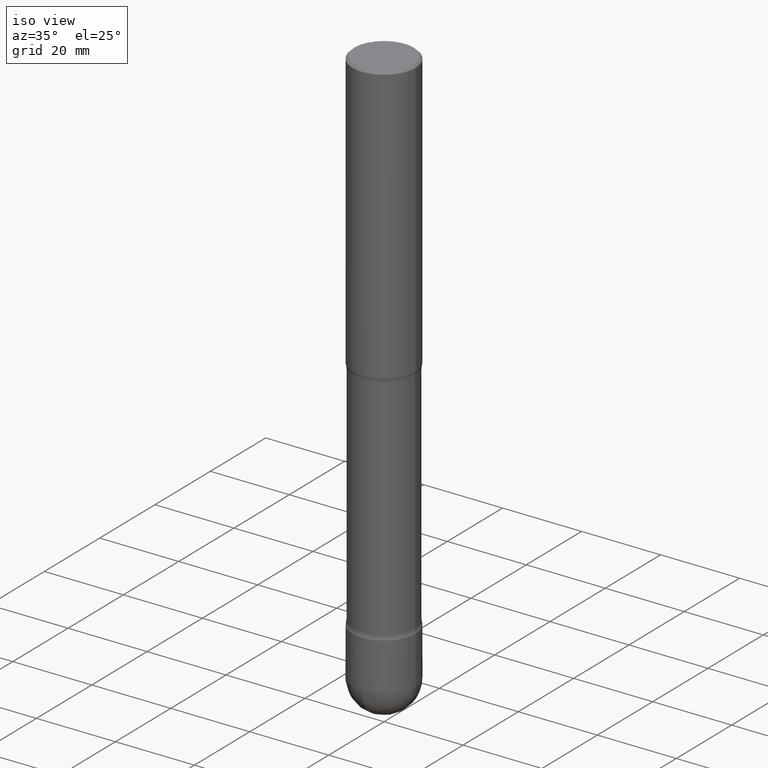
[diagram: clean part render]
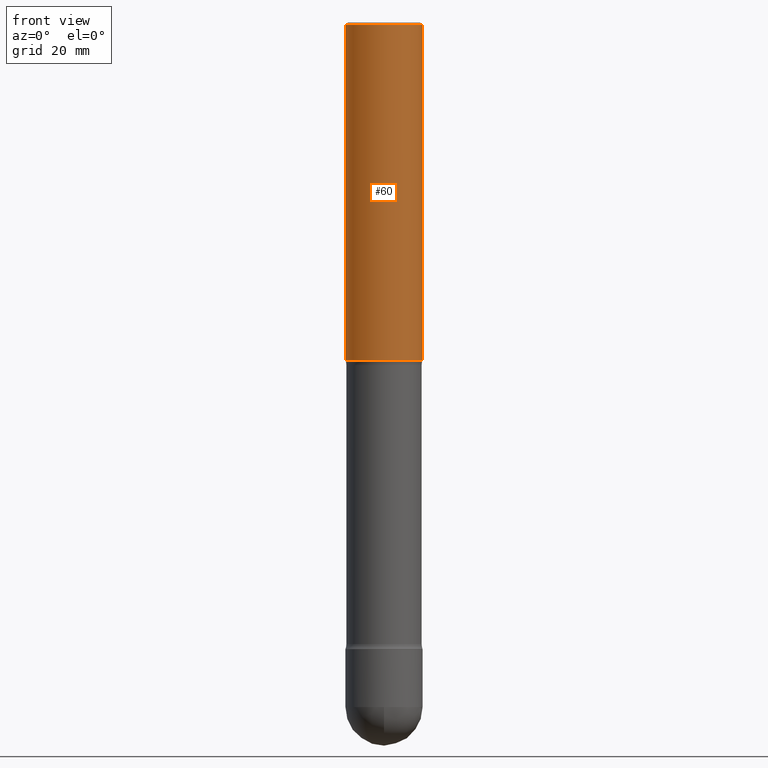
[diagram: tour spotlight — one face highlighted and labeled with its STEP entity id]
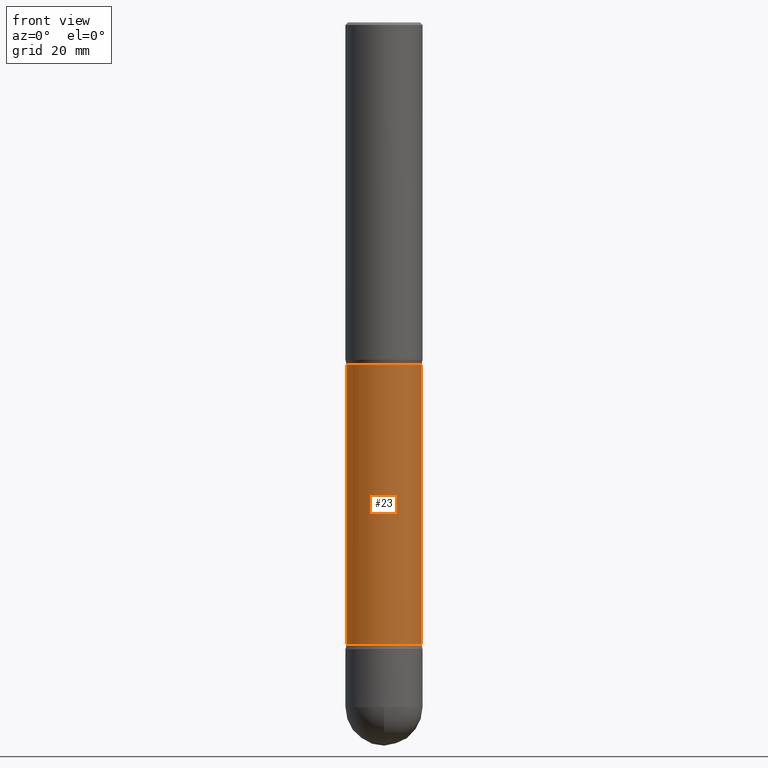
[diagram: tour spotlight — one face highlighted and labeled with its STEP entity id]
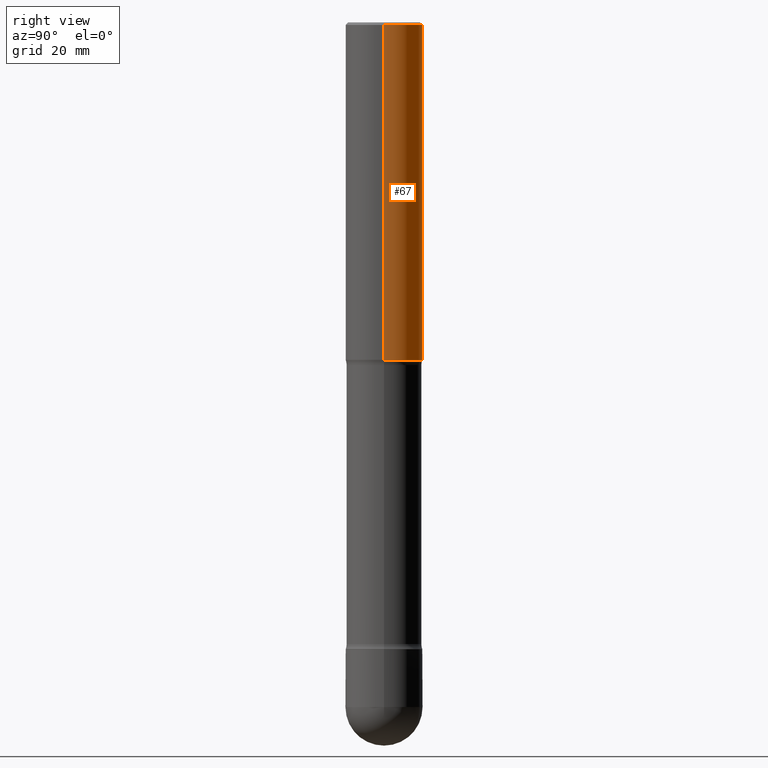
[diagram: tour spotlight — one face highlighted and labeled with its STEP entity id]
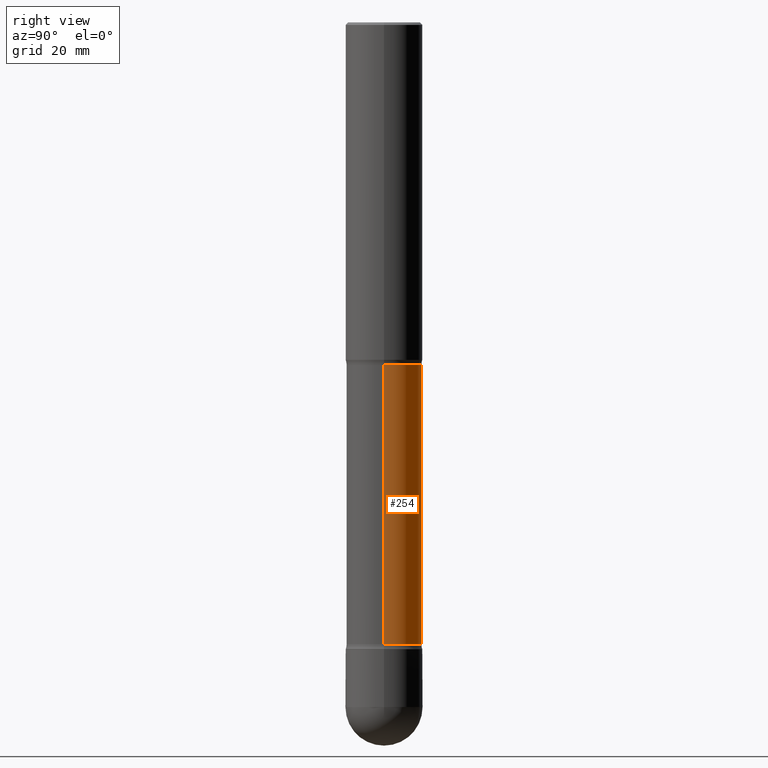
[diagram: tour spotlight — one face highlighted and labeled with its STEP entity id]
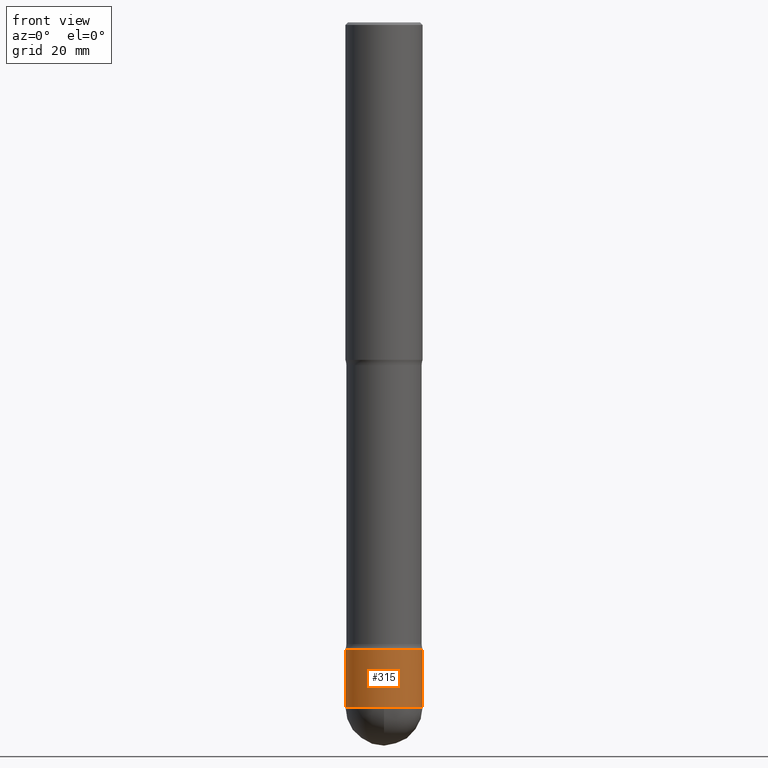
[diagram: tour spotlight — one face highlighted and labeled with its STEP entity id]
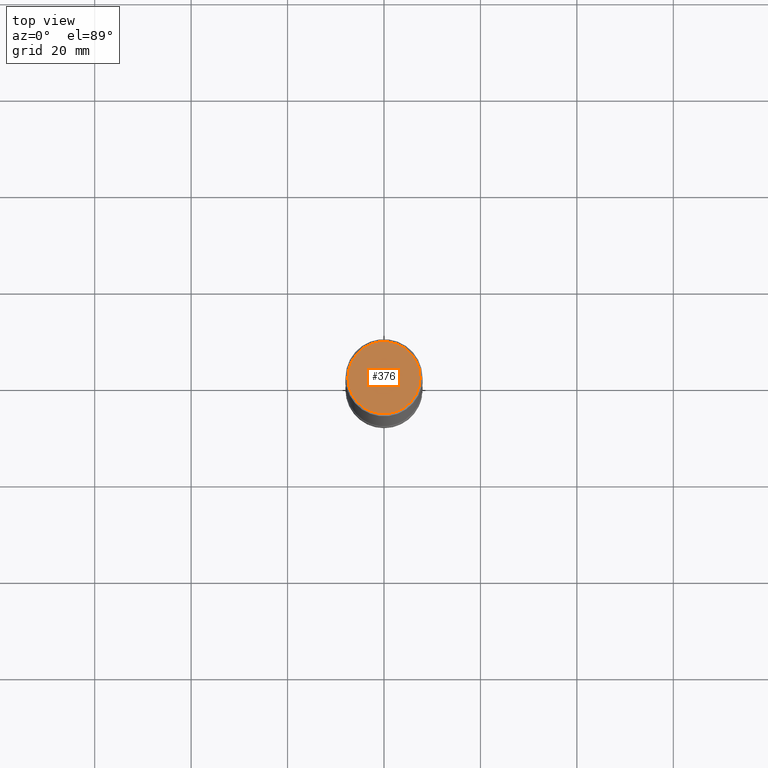
[diagram: tour spotlight — one face highlighted and labeled with its STEP entity id]
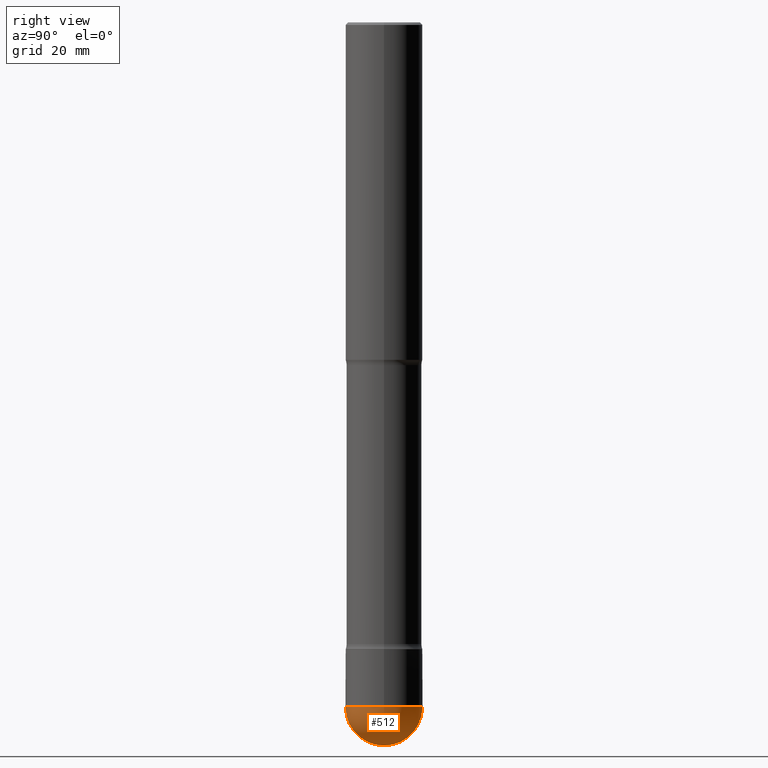
[diagram: tour spotlight — one face highlighted and labeled with its STEP entity id]
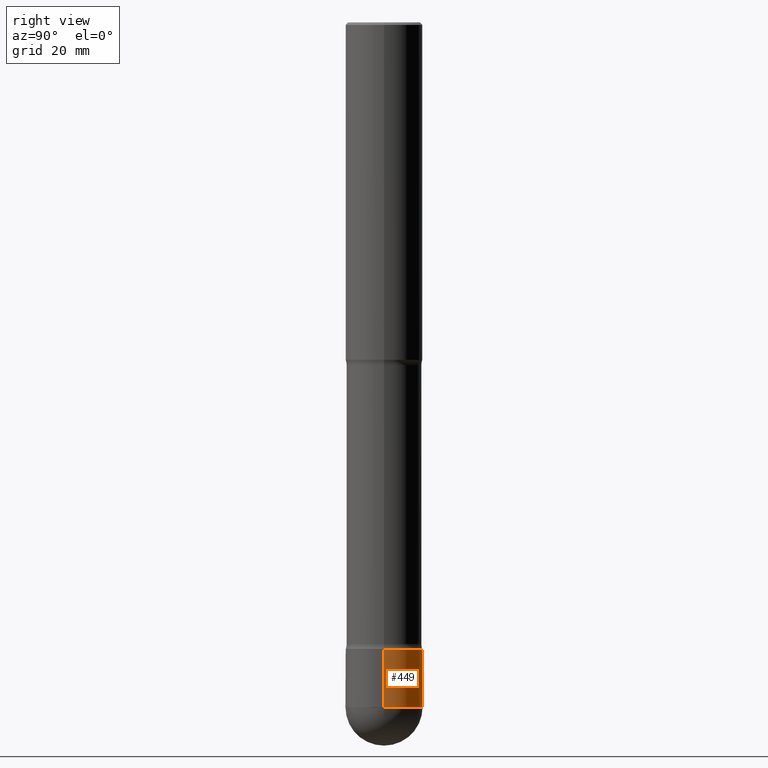
[diagram: tour spotlight — one face highlighted and labeled with its STEP entity id]
A machine part: a face-by-face anatomy tour. The part has 19 B-rep faces; the first image is the clean iso view, then the 8 largest visible faces are spotlighted one at a time (largest first), each with its STEP entity span.

Face 1 — front view, entity #60. In plain terms, the highlighted cylindrical surface (partial cylindrical patch) has radius 7.9997 mm, axis along (0, -0, -1).
Definition (entity closure, byte-faithful):
#9 = VERTEX_POINT ( 'NONE', #181 ) ;
#16 = CARTESIAN_POINT ( 'NONE',  ( 1.251615389693614574E-28, -1.786975064033310244E-14, -5.118099999999999206 ) ) ;
#20 = AXIS2_PLACEMENT_3D ( 'NONE', #16, #175, #281 ) ;
#50 = FACE_OUTER_BOUND ( 'NONE', #194, .T. ) ;
#60 = ADVANCED_FACE ( 'NONE', ( #50 ), #132, .T. ) ;
#85 = CARTESIAN_POINT ( 'NONE',  ( 0.3149500000000000077, -7.006715368645488390E-15, -2.755900000000000460 ) ) ;
#111 = DIRECTION ( 'NONE',  ( 2.445468806185136597E-29, -3.491481338843145583E-15, -1.000000000000000000 ) ) ;
#124 = DIRECTION ( 'NONE',  ( 2.445468806185136877E-29, -3.491481338843145188E-15, -1.000000000000000000 ) ) ;
#132 = CYLINDRICAL_SURFACE ( 'NONE', #20, 0.3149499999999998967 ) ;
#139 = ORIENTED_EDGE ( 'NONE', *, *, #166, .T. ) ;
#159 = EDGE_CURVE ( 'NONE', #336, #9, #489, .T. ) ;
#161 = DIRECTION ( 'NONE',  ( 2.445468806185136597E-29, -3.491481338843145583E-15, -1.000000000000000000 ) ) ;
#166 = EDGE_CURVE ( 'NONE', #405, #464, #325, .T. ) ;
#175 = DIRECTION ( 'NONE',  ( 2.445468806185136597E-29, -3.491481338843145583E-15, -1.000000000000000000 ) ) ;
#181 = CARTESIAN_POINT ( 'NONE',  ( -0.3149500000000000077, -7.422889326380536097E-15, -2.755900000000000460 ) ) ;
#194 = EDGE_LOOP ( 'NONE', ( #425, #139, #238, #279 ) ) ;
#204 = DIRECTION ( 'NONE',  ( -1.000000000000000000, 6.982962677686266711E-15, 0.000000000000000000 ) ) ;
#213 = LINE ( 'NONE', #561, #250 ) ;
#215 = CARTESIAN_POINT ( 'NONE',  ( 0.3149499999999997302, -2.230543471175006266E-15, -0.02000000000000033348 ) ) ;
#238 = ORIENTED_EDGE ( 'NONE', *, *, #355, .T. ) ;
#242 = AXIS2_PLACEMENT_3D ( 'NONE', #428, #161, #329 ) ;
#250 = VECTOR ( 'NONE', #124, 39.37007874015748143 ) ;
#262 = CARTESIAN_POINT ( 'NONE',  ( -0.3149499999999997302, 2.129454468560423812E-15, -0.02000000000000033348 ) ) ;
#279 = ORIENTED_EDGE ( 'NONE', *, *, #159, .F. ) ;
#281 = DIRECTION ( 'NONE',  ( -1.000000000000000000, 6.982962677686265922E-15, 0.000000000000000000 ) ) ;
#299 = EDGE_CURVE ( 'NONE', #405, #336, #213, .T. ) ;
#302 = DIRECTION ( 'NONE',  ( 2.445468806185136877E-29, -3.491481338843145188E-15, -1.000000000000000000 ) ) ;
#305 = AXIS2_PLACEMENT_3D ( 'NONE', #375, #111, #204 ) ;
#325 = CIRCLE ( 'NONE', #242, 0.3149499999999997302 ) ;
#329 = DIRECTION ( 'NONE',  ( -1.000000000000000000, 6.982962677686266711E-15, 0.000000000000000000 ) ) ;
#336 = VERTEX_POINT ( 'NONE', #85 ) ;
#346 = LINE ( 'NONE', #565, #502 ) ;
#355 = EDGE_CURVE ( 'NONE', #464, #9, #346, .T. ) ;
#375 = CARTESIAN_POINT ( 'NONE',  ( 6.739467482965619353E-29, -9.622173421717825968E-15, -2.755900000000000460 ) ) ;
#405 = VERTEX_POINT ( 'NONE', #215 ) ;
#425 = ORIENTED_EDGE ( 'NONE', *, *, #299, .F. ) ;
#428 = CARTESIAN_POINT ( 'NONE',  ( 4.890937612370354609E-31, -6.982962677686407473E-17, -0.02000000000000033348 ) ) ;
#464 = VERTEX_POINT ( 'NONE', #262 ) ;
#489 = CIRCLE ( 'NONE', #305, 0.3149500000000000077 ) ;
#502 = VECTOR ( 'NONE', #302, 39.37007874015748143 ) ;
#561 = CARTESIAN_POINT ( 'NONE',  ( 0.3149499999999998967, -2.003046448473124620E-14, -5.118099999999999206 ) ) ;
#565 = CARTESIAN_POINT ( 'NONE',  ( -0.3149499999999998967, -1.567046654499581415E-14, -5.118099999999999206 ) ) ;

Face 2 — front view, entity #23. In plain terms, the highlighted cylindrical surface (partial cylindrical patch) has radius 7.8092 mm, axis along (0, -0, -1).
Definition (entity closure, byte-faithful):
#1 = DIRECTION ( 'NONE',  ( 2.445468806185136597E-29, -3.491481338843145583E-15, -1.000000000000000000 ) ) ;
#8 = EDGE_CURVE ( 'NONE', #544, #311, #177, .T. ) ;
#22 = ORIENTED_EDGE ( 'NONE', *, *, #81, .F. ) ;
#23 = ADVANCED_FACE ( 'NONE', ( #402 ), #356, .T. ) ;
#30 = VECTOR ( 'NONE', #444, 39.37007874015748143 ) ;
#47 = DIRECTION ( 'NONE',  ( 2.445468806185136597E-29, -3.491481338843145583E-15, -1.000000000000000000 ) ) ;
#51 = LINE ( 'NONE', #563, #30 ) ;
#57 = EDGE_LOOP ( 'NONE', ( #456, #168, #495, #22 ) ) ;
#81 = EDGE_CURVE ( 'NONE', #206, #311, #199, .T. ) ;
#118 = CARTESIAN_POINT ( 'NONE',  ( 6.843758914944387642E-29, -9.771073946490062515E-15, -2.798546805273080640 ) ) ;
#160 = CARTESIAN_POINT ( 'NONE',  ( 0.3074499999999996125, -1.585522214044031702E-14, -5.075453194726919470 ) ) ;
#168 = ORIENTED_EDGE ( 'NONE', *, *, #275, .T. ) ;
#169 = CARTESIAN_POINT ( 'NONE',  ( -0.3074499999999996125, -1.557393824030622744E-14, -5.075453194726919470 ) ) ;
#173 = DIRECTION ( 'NONE',  ( 2.445468806185136597E-29, -3.491481338843145583E-15, -1.000000000000000000 ) ) ;
#177 = LINE ( 'NONE', #492, #267 ) ;
#199 = CIRCLE ( 'NONE', #424, 0.3074499999999996125 ) ;
#206 = VERTEX_POINT ( 'NONE', #160 ) ;
#223 = DIRECTION ( 'NONE',  ( -1.000000000000000000, 6.982962677686262766E-15, 0.000000000000000000 ) ) ;
#267 = VECTOR ( 'NONE', #395, 39.37007874015748143 ) ;
#275 = EDGE_CURVE ( 'NONE', #353, #544, #287, .T. ) ;
#287 = CIRCLE ( 'NONE', #479, 0.3074499999999992239 ) ;
#311 = VERTEX_POINT ( 'NONE', #169 ) ;
#353 = VERTEX_POINT ( 'NONE', #396 ) ;
#356 = CYLINDRICAL_SURFACE ( 'NONE', #542, 0.3074499999999993904 ) ;
#395 = DIRECTION ( 'NONE',  ( 2.445468806185136877E-29, -3.491481338843145188E-15, -1.000000000000000000 ) ) ;
#396 = CARTESIAN_POINT ( 'NONE',  ( 0.3074499999999992239, -1.183161066101044135E-14, -2.798546805273080640 ) ) ;
#402 = FACE_OUTER_BOUND ( 'NONE', #57, .T. ) ;
#424 = AXIS2_PLACEMENT_3D ( 'NONE', #442, #47, #223 ) ;
#442 = CARTESIAN_POINT ( 'NONE',  ( 1.241186246495737745E-28, -1.772085011556086905E-14, -5.075453194726919470 ) ) ;
#444 = DIRECTION ( 'NONE',  ( 2.445468806185136877E-29, -3.491481338843145188E-15, -1.000000000000000000 ) ) ;
#454 = DIRECTION ( 'NONE',  ( -1.000000000000000000, 6.982962677686268288E-15, 0.000000000000000000 ) ) ;
#456 = ORIENTED_EDGE ( 'NONE', *, *, #478, .F. ) ;
#478 = EDGE_CURVE ( 'NONE', #353, #206, #51, .T. ) ;
#479 = AXIS2_PLACEMENT_3D ( 'NONE', #118, #173, #524 ) ;
#492 = CARTESIAN_POINT ( 'NONE',  ( -0.3074499999999993904, -1.572283876507846399E-14, -5.118099999999999206 ) ) ;
#495 = ORIENTED_EDGE ( 'NONE', *, *, #8, .T. ) ;
#524 = DIRECTION ( 'NONE',  ( -1.000000000000000000, 6.982962677686265133E-15, 0.000000000000000000 ) ) ;
#528 = CARTESIAN_POINT ( 'NONE',  ( -0.3074499999999992239, -7.624162071235425640E-15, -2.798546805273080640 ) ) ;
#538 = CARTESIAN_POINT ( 'NONE',  ( 1.251615389693614574E-28, -1.786975064033310244E-14, -5.118099999999999206 ) ) ;
#542 = AXIS2_PLACEMENT_3D ( 'NONE', #538, #1, #454 ) ;
#544 = VERTEX_POINT ( 'NONE', #528 ) ;
#563 = CARTESIAN_POINT ( 'NONE',  ( 0.3074499999999993904, -1.997901074974795605E-14, -5.118099999999999206 ) ) ;

Face 3 — right view, entity #67. In plain terms, the highlighted cylindrical surface (partial cylindrical patch) has radius 7.9997 mm, axis along (0, -0, -1).
Definition (entity closure, byte-faithful):
#9 = VERTEX_POINT ( 'NONE', #181 ) ;
#46 = CARTESIAN_POINT ( 'NONE',  ( 6.739467482965619353E-29, -9.622173421717825968E-15, -2.755900000000000460 ) ) ;
#56 = FACE_OUTER_BOUND ( 'NONE', #140, .T. ) ;
#67 = ADVANCED_FACE ( 'NONE', ( #56 ), #345, .T. ) ;
#79 = EDGE_CURVE ( 'NONE', #464, #405, #312, .T. ) ;
#82 = AXIS2_PLACEMENT_3D ( 'NONE', #46, #182, #447 ) ;
#85 = CARTESIAN_POINT ( 'NONE',  ( 0.3149500000000000077, -7.006715368645488390E-15, -2.755900000000000460 ) ) ;
#103 = DIRECTION ( 'NONE',  ( -1.000000000000000000, 6.982962677686265922E-15, 0.000000000000000000 ) ) ;
#105 = DIRECTION ( 'NONE',  ( -1.000000000000000000, 6.982962677686266711E-15, 0.000000000000000000 ) ) ;
#124 = DIRECTION ( 'NONE',  ( 2.445468806185136877E-29, -3.491481338843145188E-15, -1.000000000000000000 ) ) ;
#126 = AXIS2_PLACEMENT_3D ( 'NONE', #529, #406, #105 ) ;
#140 = EDGE_LOOP ( 'NONE', ( #151, #504, #221, #180 ) ) ;
#151 = ORIENTED_EDGE ( 'NONE', *, *, #79, .T. ) ;
#180 = ORIENTED_EDGE ( 'NONE', *, *, #355, .F. ) ;
#181 = CARTESIAN_POINT ( 'NONE',  ( -0.3149500000000000077, -7.422889326380536097E-15, -2.755900000000000460 ) ) ;
#182 = DIRECTION ( 'NONE',  ( 2.445468806185136597E-29, -3.491481338843145583E-15, -1.000000000000000000 ) ) ;
#213 = LINE ( 'NONE', #561, #250 ) ;
#215 = CARTESIAN_POINT ( 'NONE',  ( 0.3149499999999997302, -2.230543471175006266E-15, -0.02000000000000033348 ) ) ;
#221 = ORIENTED_EDGE ( 'NONE', *, *, #537, .F. ) ;
#235 = DIRECTION ( 'NONE',  ( 2.445468806185136597E-29, -3.491481338843145583E-15, -1.000000000000000000 ) ) ;
#239 = CARTESIAN_POINT ( 'NONE',  ( 1.251615389693614574E-28, -1.786975064033310244E-14, -5.118099999999999206 ) ) ;
#250 = VECTOR ( 'NONE', #124, 39.37007874015748143 ) ;
#262 = CARTESIAN_POINT ( 'NONE',  ( -0.3149499999999997302, 2.129454468560423812E-15, -0.02000000000000033348 ) ) ;
#299 = EDGE_CURVE ( 'NONE', #405, #336, #213, .T. ) ;
#302 = DIRECTION ( 'NONE',  ( 2.445468806185136877E-29, -3.491481338843145188E-15, -1.000000000000000000 ) ) ;
#312 = CIRCLE ( 'NONE', #126, 0.3149499999999997302 ) ;
#336 = VERTEX_POINT ( 'NONE', #85 ) ;
#345 = CYLINDRICAL_SURFACE ( 'NONE', #439, 0.3149499999999998967 ) ;
#346 = LINE ( 'NONE', #565, #502 ) ;
#355 = EDGE_CURVE ( 'NONE', #464, #9, #346, .T. ) ;
#405 = VERTEX_POINT ( 'NONE', #215 ) ;
#406 = DIRECTION ( 'NONE',  ( 2.445468806185136597E-29, -3.491481338843145583E-15, -1.000000000000000000 ) ) ;
#412 = CIRCLE ( 'NONE', #82, 0.3149500000000000077 ) ;
#439 = AXIS2_PLACEMENT_3D ( 'NONE', #239, #235, #103 ) ;
#447 = DIRECTION ( 'NONE',  ( -1.000000000000000000, 6.982962677686266711E-15, 0.000000000000000000 ) ) ;
#464 = VERTEX_POINT ( 'NONE', #262 ) ;
#502 = VECTOR ( 'NONE', #302, 39.37007874015748143 ) ;
#504 = ORIENTED_EDGE ( 'NONE', *, *, #299, .T. ) ;
#529 = CARTESIAN_POINT ( 'NONE',  ( 4.890937612370354609E-31, -6.982962677686407473E-17, -0.02000000000000033348 ) ) ;
#537 = EDGE_CURVE ( 'NONE', #9, #336, #412, .T. ) ;
#561 = CARTESIAN_POINT ( 'NONE',  ( 0.3149499999999998967, -2.003046448473124620E-14, -5.118099999999999206 ) ) ;
#565 = CARTESIAN_POINT ( 'NONE',  ( -0.3149499999999998967, -1.567046654499581415E-14, -5.118099999999999206 ) ) ;

Face 4 — right view, entity #254. In plain terms, the highlighted cylindrical surface (partial cylindrical patch) has radius 7.8092 mm, axis along (0, -0, -1).
Definition (entity closure, byte-faithful):
#5 = ORIENTED_EDGE ( 'NONE', *, *, #277, .T. ) ;
#8 = EDGE_CURVE ( 'NONE', #544, #311, #177, .T. ) ;
#30 = VECTOR ( 'NONE', #444, 39.37007874015748143 ) ;
#38 = FACE_OUTER_BOUND ( 'NONE', #234, .T. ) ;
#51 = LINE ( 'NONE', #563, #30 ) ;
#87 = AXIS2_PLACEMENT_3D ( 'NONE', #496, #273, #174 ) ;
#157 = CYLINDRICAL_SURFACE ( 'NONE', #532, 0.3074499999999993904 ) ;
#160 = CARTESIAN_POINT ( 'NONE',  ( 0.3074499999999996125, -1.585522214044031702E-14, -5.075453194726919470 ) ) ;
#169 = CARTESIAN_POINT ( 'NONE',  ( -0.3074499999999996125, -1.557393824030622744E-14, -5.075453194726919470 ) ) ;
#174 = DIRECTION ( 'NONE',  ( -1.000000000000000000, 6.982962677686262766E-15, 0.000000000000000000 ) ) ;
#177 = LINE ( 'NONE', #492, #267 ) ;
#189 = ORIENTED_EDGE ( 'NONE', *, *, #478, .T. ) ;
#206 = VERTEX_POINT ( 'NONE', #160 ) ;
#234 = EDGE_LOOP ( 'NONE', ( #5, #189, #550, #501 ) ) ;
#251 = DIRECTION ( 'NONE',  ( -1.000000000000000000, 6.982962677686268288E-15, 0.000000000000000000 ) ) ;
#254 = ADVANCED_FACE ( 'NONE', ( #38 ), #157, .T. ) ;
#267 = VECTOR ( 'NONE', #395, 39.37007874015748143 ) ;
#273 = DIRECTION ( 'NONE',  ( 2.445468806185136597E-29, -3.491481338843145583E-15, -1.000000000000000000 ) ) ;
#276 = AXIS2_PLACEMENT_3D ( 'NONE', #386, #530, #383 ) ;
#277 = EDGE_CURVE ( 'NONE', #544, #353, #521, .T. ) ;
#311 = VERTEX_POINT ( 'NONE', #169 ) ;
#330 = CIRCLE ( 'NONE', #87, 0.3074499999999996125 ) ;
#334 = CARTESIAN_POINT ( 'NONE',  ( 1.251615389693614574E-28, -1.786975064033310244E-14, -5.118099999999999206 ) ) ;
#353 = VERTEX_POINT ( 'NONE', #396 ) ;
#383 = DIRECTION ( 'NONE',  ( -1.000000000000000000, 6.982962677686265133E-15, 0.000000000000000000 ) ) ;
#386 = CARTESIAN_POINT ( 'NONE',  ( 6.843758914944387642E-29, -9.771073946490062515E-15, -2.798546805273080640 ) ) ;
#395 = DIRECTION ( 'NONE',  ( 2.445468806185136877E-29, -3.491481338843145188E-15, -1.000000000000000000 ) ) ;
#396 = CARTESIAN_POINT ( 'NONE',  ( 0.3074499999999992239, -1.183161066101044135E-14, -2.798546805273080640 ) ) ;
#426 = DIRECTION ( 'NONE',  ( 2.445468806185136597E-29, -3.491481338843145583E-15, -1.000000000000000000 ) ) ;
#444 = DIRECTION ( 'NONE',  ( 2.445468806185136877E-29, -3.491481338843145188E-15, -1.000000000000000000 ) ) ;
#478 = EDGE_CURVE ( 'NONE', #353, #206, #51, .T. ) ;
#492 = CARTESIAN_POINT ( 'NONE',  ( -0.3074499999999993904, -1.572283876507846399E-14, -5.118099999999999206 ) ) ;
#496 = CARTESIAN_POINT ( 'NONE',  ( 1.241186246495737745E-28, -1.772085011556086905E-14, -5.075453194726919470 ) ) ;
#501 = ORIENTED_EDGE ( 'NONE', *, *, #8, .F. ) ;
#521 = CIRCLE ( 'NONE', #276, 0.3074499999999992239 ) ;
#527 = EDGE_CURVE ( 'NONE', #311, #206, #330, .T. ) ;
#528 = CARTESIAN_POINT ( 'NONE',  ( -0.3074499999999992239, -7.624162071235425640E-15, -2.798546805273080640 ) ) ;
#530 = DIRECTION ( 'NONE',  ( 2.445468806185136597E-29, -3.491481338843145583E-15, -1.000000000000000000 ) ) ;
#532 = AXIS2_PLACEMENT_3D ( 'NONE', #334, #426, #251 ) ;
#544 = VERTEX_POINT ( 'NONE', #528 ) ;
#550 = ORIENTED_EDGE ( 'NONE', *, *, #527, .F. ) ;
#563 = CARTESIAN_POINT ( 'NONE',  ( 0.3074499999999993904, -1.997901074974795605E-14, -5.118099999999999206 ) ) ;

Face 5 — front view, entity #315. In plain terms, the highlighted cylindrical surface (partial cylindrical patch) has radius 7.9997 mm, axis along (-0, 0, 1).
Definition (entity closure, byte-faithful):
#21 = AXIS2_PLACEMENT_3D ( 'NONE', #176, #337, #48 ) ;
#37 = VECTOR ( 'NONE', #179, 39.37007874015748143 ) ;
#48 = DIRECTION ( 'NONE',  ( 1.000000000000000000, -6.982962677686266711E-15, 4.876176775795935793E-29 ) ) ;
#61 = VERTEX_POINT ( 'NONE', #307 ) ;
#68 = CARTESIAN_POINT ( 'NONE',  ( 0.3149499999999990085, -2.089380991493860711E-14, -5.590549999999999464 ) ) ;
#73 = VERTEX_POINT ( 'NONE', #98 ) ;
#91 = CARTESIAN_POINT ( 'NONE',  ( 0.3149499999999990640, -2.199284095337283166E-15, 1.535751875536925365E-29 ) ) ;
#93 = DIRECTION ( 'NONE',  ( 1.000000000000000000, -6.982962677686273021E-15, 0.000000000000000000 ) ) ;
#98 = CARTESIAN_POINT ( 'NONE',  ( 0.3149499999999990640, -2.006903473567038758E-14, -5.118099999999999206 ) ) ;
#107 = ORIENTED_EDGE ( 'NONE', *, *, #256, .T. ) ;
#108 = AXIS2_PLACEMENT_3D ( 'NONE', #257, #369, #509 ) ;
#122 = DIRECTION ( 'NONE',  ( -2.445468806185136597E-29, 3.491481338843145583E-15, 1.000000000000000000 ) ) ;
#131 = VERTEX_POINT ( 'NONE', #68 ) ;
#136 = EDGE_CURVE ( 'NONE', #505, #154, #473, .T. ) ;
#142 = CIRCLE ( 'NONE', #108, 0.3149499999999990085 ) ;
#153 = DIRECTION ( 'NONE',  ( -2.445468806185136877E-29, 3.491481338843145188E-15, 1.000000000000000000 ) ) ;
#154 = VERTEX_POINT ( 'NONE', #197 ) ;
#170 = CYLINDRICAL_SURFACE ( 'NONE', #21, 0.3149499999999990640 ) ;
#176 = CARTESIAN_POINT ( 'NONE',  ( 0.000000000000000000, 0.000000000000000000, 0.000000000000000000 ) ) ;
#179 = DIRECTION ( 'NONE',  ( -2.445468806185136877E-29, 3.491481338843145188E-15, 1.000000000000000000 ) ) ;
#197 = CARTESIAN_POINT ( 'NONE',  ( -0.3149499999999990640, -1.645667147332489546E-14, -5.118099999999999206 ) ) ;
#256 = EDGE_CURVE ( 'NONE', #505, #61, #142, .T. ) ;
#257 = CARTESIAN_POINT ( 'NONE',  ( 1.367151563441831346E-28, -1.951930099886954466E-14, -5.590549999999999464 ) ) ;
#258 = AXIS2_PLACEMENT_3D ( 'NONE', #423, #374, #338 ) ;
#259 = FACE_OUTER_BOUND ( 'NONE', #286, .T. ) ;
#270 = EDGE_CURVE ( 'NONE', #61, #131, #500, .T. ) ;
#286 = EDGE_LOOP ( 'NONE', ( #517, #107, #326, #421, #318 ) ) ;
#289 = CIRCLE ( 'NONE', #543, 0.3149499999999990640 ) ;
#307 = CARTESIAN_POINT ( 'NONE',  ( -2.237854346276293990E-15, -0.3149500000000188815, -5.590549999999997688 ) ) ;
#315 = ADVANCED_FACE ( 'NONE', ( #259 ), #170, .T. ) ;
#318 = ORIENTED_EDGE ( 'NONE', *, *, #384, .F. ) ;
#326 = ORIENTED_EDGE ( 'NONE', *, *, #270, .T. ) ;
#337 = DIRECTION ( 'NONE',  ( -2.445468806185136597E-29, 3.491481338843145583E-15, 1.000000000000000000 ) ) ;
#338 = DIRECTION ( 'NONE',  ( 1.000000000000000000, -6.982962677686261977E-15, 0.000000000000000000 ) ) ;
#369 = DIRECTION ( 'NONE',  ( -2.445468806185136597E-29, 3.491481338843145583E-15, 1.000000000000000000 ) ) ;
#374 = DIRECTION ( 'NONE',  ( -2.445468806185136597E-29, 3.491481338843145583E-15, 1.000000000000000000 ) ) ;
#384 = EDGE_CURVE ( 'NONE', #154, #73, #289, .T. ) ;
#421 = ORIENTED_EDGE ( 'NONE', *, *, #486, .T. ) ;
#423 = CARTESIAN_POINT ( 'NONE',  ( 1.367151563441831346E-28, -1.951930099886954466E-14, -5.590549999999999464 ) ) ;
#443 = CARTESIAN_POINT ( 'NONE',  ( 1.251615389693614574E-28, -1.786975064033310244E-14, -5.118099999999999206 ) ) ;
#473 = LINE ( 'NONE', #548, #506 ) ;
#483 = CARTESIAN_POINT ( 'NONE',  ( -0.3149499999999990085, -1.645667147332489546E-14, -5.590549999999999464 ) ) ;
#486 = EDGE_CURVE ( 'NONE', #131, #73, #566, .T. ) ;
#500 = CIRCLE ( 'NONE', #258, 0.3149499999999990085 ) ;
#505 = VERTEX_POINT ( 'NONE', #483 ) ;
#506 = VECTOR ( 'NONE', #153, 39.37007874015748143 ) ;
#509 = DIRECTION ( 'NONE',  ( 1.000000000000000000, -6.982962677686261977E-15, 0.000000000000000000 ) ) ;
#517 = ORIENTED_EDGE ( 'NONE', *, *, #136, .F. ) ;
#543 = AXIS2_PLACEMENT_3D ( 'NONE', #443, #122, #93 ) ;
#548 = CARTESIAN_POINT ( 'NONE',  ( -0.3149499999999990640, 2.237854346276428885E-15, -1.549218606675777912E-29 ) ) ;
#566 = LINE ( 'NONE', #91, #37 ) ;

Face 6 — top view, entity #376. In plain terms, the highlighted planar face has unit normal (-0, 0, 1).
Definition (entity closure, byte-faithful):
#39 = CARTESIAN_POINT ( 'NONE',  ( 0.000000000000000000, 0.000000000000000000, 0.000000000000000000 ) ) ;
#52 = VERTEX_POINT ( 'NONE', #146 ) ;
#66 = CIRCLE ( 'NONE', #552, 0.2949499999999996569 ) ;
#146 = CARTESIAN_POINT ( 'NONE',  ( -0.2949499999999996569, 2.059624841783562091E-15, -1.438228340021009676E-29 ) ) ;
#165 = EDGE_LOOP ( 'NONE', ( #448, #491 ) ) ;
#219 = DIRECTION ( 'NONE',  ( -2.438088387897960049E-29, 3.491481338843145188E-15, 1.000000000000000000 ) ) ;
#290 = VERTEX_POINT ( 'NONE', #446 ) ;
#296 = DIRECTION ( 'NONE',  ( 2.445468806185136597E-29, -3.491481338843145583E-15, -1.000000000000000000 ) ) ;
#308 = FACE_OUTER_BOUND ( 'NONE', #165, .T. ) ;
#347 = EDGE_CURVE ( 'NONE', #290, #52, #66, .T. ) ;
#362 = AXIS2_PLACEMENT_3D ( 'NONE', #399, #388, #438 ) ;
#376 = ADVANCED_FACE ( 'NONE', ( #308 ), #526, .T. ) ;
#388 = DIRECTION ( 'NONE',  ( 2.445468806185136597E-29, -3.491481338843145583E-15, -1.000000000000000000 ) ) ;
#392 = DIRECTION ( 'NONE',  ( -1.000000000000000000, 6.982962677686267499E-15, -4.876176775795936353E-29 ) ) ;
#399 = CARTESIAN_POINT ( 'NONE',  ( 0.000000000000000000, 0.000000000000000000, 0.000000000000000000 ) ) ;
#438 = DIRECTION ( 'NONE',  ( -1.000000000000000000, 6.982962677686267499E-15, -4.876176775795936353E-29 ) ) ;
#446 = CARTESIAN_POINT ( 'NONE',  ( 0.2949499999999996569, -2.127023677808858891E-15, 1.463937372219020093E-29 ) ) ;
#448 = ORIENTED_EDGE ( 'NONE', *, *, #465, .F. ) ;
#465 = EDGE_CURVE ( 'NONE', #52, #290, #533, .T. ) ;
#466 = AXIS2_PLACEMENT_3D ( 'NONE', #482, #219, #520 ) ;
#482 = CARTESIAN_POINT ( 'NONE',  ( 2.059624841783562091E-15, 0.2949499999999996569, -1.025543908401684169E-15 ) ) ;
#491 = ORIENTED_EDGE ( 'NONE', *, *, #347, .F. ) ;
#520 = DIRECTION ( 'NONE',  ( 1.000000000000000000, -6.982962677686265922E-15, 4.876176775795935793E-29 ) ) ;
#526 = PLANE ( 'NONE',  #466 ) ;
#533 = CIRCLE ( 'NONE', #362, 0.2949499999999996569 ) ;
#552 = AXIS2_PLACEMENT_3D ( 'NONE', #39, #296, #392 ) ;

Face 7 — right view, entity #512. In plain terms, the highlighted spherical surface has radius 7.9997 mm.
Definition (entity closure, byte-faithful):
#7 = AXIS2_PLACEMENT_3D ( 'NONE', #373, #77, #253 ) ;
#13 = VERTEX_POINT ( 'NONE', #545 ) ;
#32 = DIRECTION ( 'NONE',  ( 6.982962677686266711E-15, 1.000000000000000000, 0.000000000000000000 ) ) ;
#34 = DIRECTION ( 'NONE',  ( -2.445468806185136597E-29, 3.491481338843145583E-15, 1.000000000000000000 ) ) ;
#43 = CIRCLE ( 'NONE', #7, 0.3149499999999997302 ) ;
#54 = DIRECTION ( 'NONE',  ( 6.982962677686266711E-15, 1.000000000000000000, -3.469564049740295925E-15 ) ) ;
#61 = VERTEX_POINT ( 'NONE', #307 ) ;
#68 = CARTESIAN_POINT ( 'NONE',  ( 0.3149499999999990085, -2.089380991493860711E-14, -5.590549999999999464 ) ) ;
#74 = CARTESIAN_POINT ( 'NONE',  ( 1.364458217214061005E-28, -1.955787124980869236E-14, -5.590549999999999464 ) ) ;
#75 = CIRCLE ( 'NONE', #332, 0.3149499999999990085 ) ;
#77 = DIRECTION ( 'NONE',  ( -1.000000000000000000, 7.105427357601001070E-15, -4.926315508542082329E-29 ) ) ;
#83 = EDGE_CURVE ( 'NONE', #131, #13, #75, .T. ) ;
#120 = AXIS2_PLACEMENT_3D ( 'NONE', #344, #229, #54 ) ;
#125 = CARTESIAN_POINT ( 'NONE',  ( 1.367151563441831346E-28, -1.951930099886954466E-14, -5.590549999999999464 ) ) ;
#131 = VERTEX_POINT ( 'NONE', #68 ) ;
#155 = CIRCLE ( 'NONE', #475, 0.3149499999999997302 ) ;
#162 = EDGE_CURVE ( 'NONE', #368, #61, #43, .T. ) ;
#187 = ORIENTED_EDGE ( 'NONE', *, *, #263, .T. ) ;
#212 = ORIENTED_EDGE ( 'NONE', *, *, #162, .F. ) ;
#229 = DIRECTION ( 'NONE',  ( -1.000000000000000000, 6.982962677686266711E-15, -4.883557194083112901E-29 ) ) ;
#249 = DIRECTION ( 'NONE',  ( 1.000000000000000000, -6.982962677686265922E-15, 4.883557194083112340E-29 ) ) ;
#253 = DIRECTION ( 'NONE',  ( -7.105427357601000281E-15, -1.000000000000000000, 0.000000000000000000 ) ) ;
#258 = AXIS2_PLACEMENT_3D ( 'NONE', #423, #374, #338 ) ;
#263 = EDGE_CURVE ( 'NONE', #368, #13, #155, .T. ) ;
#270 = EDGE_CURVE ( 'NONE', #61, #131, #500, .T. ) ;
#285 = EDGE_LOOP ( 'NONE', ( #212, #187, #519, #366 ) ) ;
#301 = SPHERICAL_SURFACE ( 'NONE', #120, 0.3149499999999997302 ) ;
#307 = CARTESIAN_POINT ( 'NONE',  ( -2.237854346276293990E-15, -0.3149500000000188815, -5.590549999999997688 ) ) ;
#332 = AXIS2_PLACEMENT_3D ( 'NONE', #125, #34, #413 ) ;
#338 = DIRECTION ( 'NONE',  ( 1.000000000000000000, -6.982962677686261977E-15, 0.000000000000000000 ) ) ;
#344 = CARTESIAN_POINT ( 'NONE',  ( 1.364458217214061005E-28, -1.955787124980869236E-14, -5.590549999999999464 ) ) ;
#350 = FACE_OUTER_BOUND ( 'NONE', #285, .T. ) ;
#366 = ORIENTED_EDGE ( 'NONE', *, *, #270, .F. ) ;
#368 = VERTEX_POINT ( 'NONE', #562 ) ;
#373 = CARTESIAN_POINT ( 'NONE',  ( 1.364458217214061005E-28, -1.955787124980869236E-14, -5.590549999999999464 ) ) ;
#374 = DIRECTION ( 'NONE',  ( -2.445468806185136597E-29, 3.491481338843145583E-15, 1.000000000000000000 ) ) ;
#413 = DIRECTION ( 'NONE',  ( 1.000000000000000000, -6.982962677686261977E-15, 0.000000000000000000 ) ) ;
#423 = CARTESIAN_POINT ( 'NONE',  ( 1.367151563441831346E-28, -1.951930099886954466E-14, -5.590549999999999464 ) ) ;
#475 = AXIS2_PLACEMENT_3D ( 'NONE', #74, #249, #32 ) ;
#500 = CIRCLE ( 'NONE', #258, 0.3149499999999990085 ) ;
#512 = ADVANCED_FACE ( 'NONE', ( #350 ), #301, .T. ) ;
#519 = ORIENTED_EDGE ( 'NONE', *, *, #83, .F. ) ;
#545 = CARTESIAN_POINT ( 'NONE',  ( 2.199284095337421611E-15, 0.3149499999999798017, -5.590550000000000352 ) ) ;
#562 = CARTESIAN_POINT ( 'NONE',  ( 1.442824930378747100E-28, -2.063822817200776423E-14, -5.905499999999998195 ) ) ;

Face 8 — right view, entity #449. In plain terms, the highlighted cylindrical surface (partial cylindrical patch) has radius 7.9997 mm, axis along (-0, 0, 1).
Definition (entity closure, byte-faithful):
#4 = DIRECTION ( 'NONE',  ( 1.000000000000000000, -6.982962677686273021E-15, 0.000000000000000000 ) ) ;
#13 = VERTEX_POINT ( 'NONE', #545 ) ;
#34 = DIRECTION ( 'NONE',  ( -2.445468806185136597E-29, 3.491481338843145583E-15, 1.000000000000000000 ) ) ;
#37 = VECTOR ( 'NONE', #179, 39.37007874015748143 ) ;
#68 = CARTESIAN_POINT ( 'NONE',  ( 0.3149499999999990085, -2.089380991493860711E-14, -5.590549999999999464 ) ) ;
#70 = ORIENTED_EDGE ( 'NONE', *, *, #486, .F. ) ;
#73 = VERTEX_POINT ( 'NONE', #98 ) ;
#75 = CIRCLE ( 'NONE', #332, 0.3149499999999990085 ) ;
#83 = EDGE_CURVE ( 'NONE', #131, #13, #75, .T. ) ;
#91 = CARTESIAN_POINT ( 'NONE',  ( 0.3149499999999990640, -2.199284095337283166E-15, 1.535751875536925365E-29 ) ) ;
#94 = DIRECTION ( 'NONE',  ( 1.000000000000000000, -6.982962677686261977E-15, 0.000000000000000000 ) ) ;
#96 = ORIENTED_EDGE ( 'NONE', *, *, #136, .T. ) ;
#98 = CARTESIAN_POINT ( 'NONE',  ( 0.3149499999999990640, -2.006903473567038758E-14, -5.118099999999999206 ) ) ;
#114 = CIRCLE ( 'NONE', #401, 0.3149499999999990640 ) ;
#125 = CARTESIAN_POINT ( 'NONE',  ( 1.367151563441831346E-28, -1.951930099886954466E-14, -5.590549999999999464 ) ) ;
#131 = VERTEX_POINT ( 'NONE', #68 ) ;
#136 = EDGE_CURVE ( 'NONE', #505, #154, #473, .T. ) ;
#149 = CARTESIAN_POINT ( 'NONE',  ( 1.367151563441831346E-28, -1.951930099886954466E-14, -5.590549999999999464 ) ) ;
#153 = DIRECTION ( 'NONE',  ( -2.445468806185136877E-29, 3.491481338843145188E-15, 1.000000000000000000 ) ) ;
#154 = VERTEX_POINT ( 'NONE', #197 ) ;
#179 = DIRECTION ( 'NONE',  ( -2.445468806185136877E-29, 3.491481338843145188E-15, 1.000000000000000000 ) ) ;
#197 = CARTESIAN_POINT ( 'NONE',  ( -0.3149499999999990640, -1.645667147332489546E-14, -5.118099999999999206 ) ) ;
#202 = AXIS2_PLACEMENT_3D ( 'NONE', #149, #403, #94 ) ;
#220 = DIRECTION ( 'NONE',  ( -2.445468806185136597E-29, 3.491481338843145583E-15, 1.000000000000000000 ) ) ;
#233 = DIRECTION ( 'NONE',  ( 1.000000000000000000, -6.982962677686266711E-15, 4.876176775795935793E-29 ) ) ;
#252 = CIRCLE ( 'NONE', #202, 0.3149499999999990085 ) ;
#321 = EDGE_LOOP ( 'NONE', ( #379, #96, #394, #70, #410 ) ) ;
#332 = AXIS2_PLACEMENT_3D ( 'NONE', #125, #34, #413 ) ;
#379 = ORIENTED_EDGE ( 'NONE', *, *, #445, .T. ) ;
#393 = DIRECTION ( 'NONE',  ( -2.445468806185136597E-29, 3.491481338843145583E-15, 1.000000000000000000 ) ) ;
#394 = ORIENTED_EDGE ( 'NONE', *, *, #559, .F. ) ;
#397 = CARTESIAN_POINT ( 'NONE',  ( 1.251615389693614574E-28, -1.786975064033310244E-14, -5.118099999999999206 ) ) ;
#401 = AXIS2_PLACEMENT_3D ( 'NONE', #397, #220, #4 ) ;
#403 = DIRECTION ( 'NONE',  ( -2.445468806185136597E-29, 3.491481338843145583E-15, 1.000000000000000000 ) ) ;
#410 = ORIENTED_EDGE ( 'NONE', *, *, #83, .T. ) ;
#413 = DIRECTION ( 'NONE',  ( 1.000000000000000000, -6.982962677686261977E-15, 0.000000000000000000 ) ) ;
#436 = AXIS2_PLACEMENT_3D ( 'NONE', #525, #393, #233 ) ;
#445 = EDGE_CURVE ( 'NONE', #13, #505, #252, .T. ) ;
#449 = ADVANCED_FACE ( 'NONE', ( #451 ), #488, .T. ) ;
#451 = FACE_OUTER_BOUND ( 'NONE', #321, .T. ) ;
#473 = LINE ( 'NONE', #548, #506 ) ;
#483 = CARTESIAN_POINT ( 'NONE',  ( -0.3149499999999990085, -1.645667147332489546E-14, -5.590549999999999464 ) ) ;
#486 = EDGE_CURVE ( 'NONE', #131, #73, #566, .T. ) ;
#488 = CYLINDRICAL_SURFACE ( 'NONE', #436, 0.3149499999999990640 ) ;
#505 = VERTEX_POINT ( 'NONE', #483 ) ;
#506 = VECTOR ( 'NONE', #153, 39.37007874015748143 ) ;
#525 = CARTESIAN_POINT ( 'NONE',  ( 0.000000000000000000, 0.000000000000000000, 0.000000000000000000 ) ) ;
#545 = CARTESIAN_POINT ( 'NONE',  ( 2.199284095337421611E-15, 0.3149499999999798017, -5.590550000000000352 ) ) ;
#548 = CARTESIAN_POINT ( 'NONE',  ( -0.3149499999999990640, 2.237854346276428885E-15, -1.549218606675777912E-29 ) ) ;
#559 = EDGE_CURVE ( 'NONE', #73, #154, #114, .T. ) ;
#566 = LINE ( 'NONE', #91, #37 ) ;